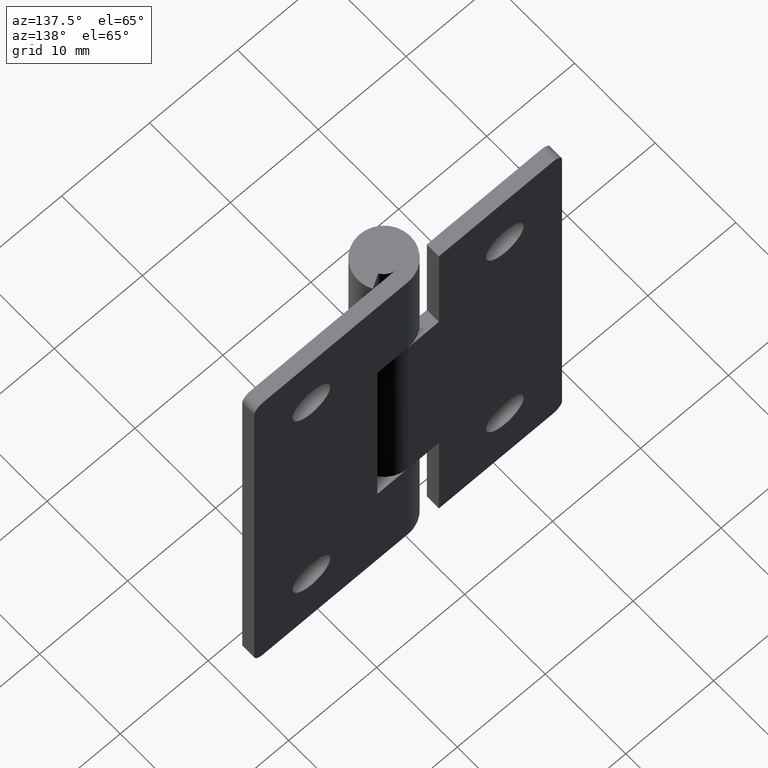
[diagram: clean part render]
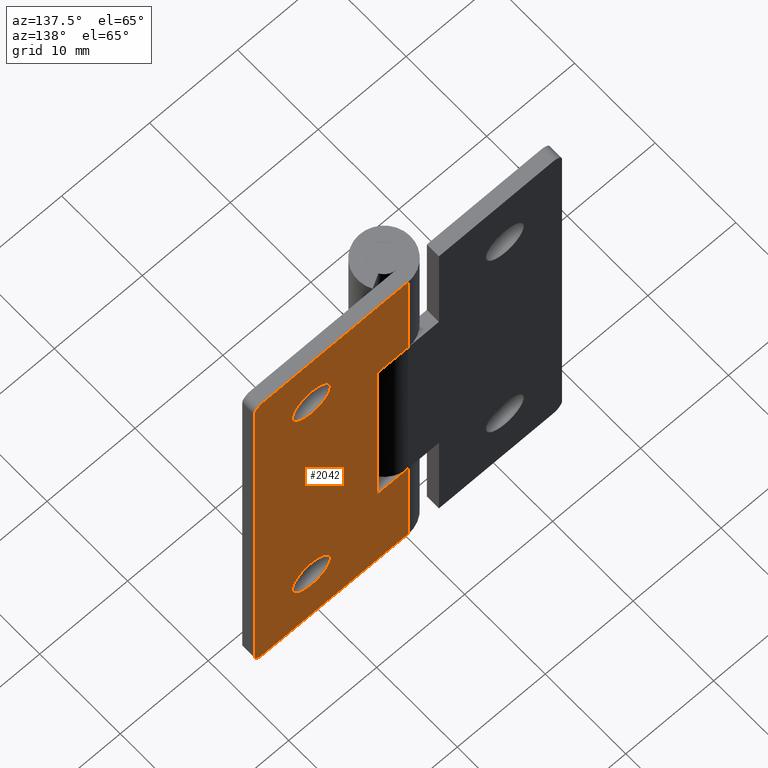
[diagram: same view with one face highlighted and labeled with its STEP entity id]
A machine part, auxiliary view. The second image highlights one B-rep face of the part: STEP entity #2042.
In plain terms, the highlighted face is a freeform B-spline surface patch.
Its self-contained STEP definition (entity closure, byte-faithful):
#1024=CARTESIAN_POINT('',(8.856627732480945,3.0,42.168695055905957));
#1025=VERTEX_POINT('',#1024);
#1031=CARTESIAN_POINT('',(11.0,3.0,44.150008000000000));
#1032=VERTEX_POINT('',#1031);
#1033=CARTESIAN_POINT('',(11.0,3.0,44.150008000000000));
#1034=CARTESIAN_POINT('',(9.012560443104306,3.0,44.150008000000000));
#1035=CARTESIAN_POINT('',(8.856627732480945,3.000000000000000,42.168695055905957));
#1043=(BOUNDED_CURVE()B_SPLINE_CURVE(2,(#1033,#1034,#1035),.UNSPECIFIED.,.F.,.U.)B_SPLINE_CURVE_WITH_KNOTS((3,3),(0.0,0.236331300618196),.UNSPECIFIED.)CURVE()GEOMETRIC_REPRESENTATION_ITEM()RATIONAL_B_SPLINE_CURVE((1.0,0.723120658622267,0.969723356141408))REPRESENTATION_ITEM(''));
#1044=EDGE_CURVE('',#1032,#1025,#1043,.T.);
#1046=CARTESIAN_POINT('',(13.143372267519061,3.0,41.831320944094038));
#1047=VERTEX_POINT('',#1046);
#1048=CARTESIAN_POINT('',(13.143372267519055,3.000000000000000,41.831320944094038));
#1049=CARTESIAN_POINT('',(13.149999999999997,3.000000000000001,41.915534269841991));
#1050=CARTESIAN_POINT('',(13.150000000000000,3.0,42.000008000000001));
#1051=CARTESIAN_POINT('',(13.149999999999999,3.000000000000000,44.150008000000000));
#1052=CARTESIAN_POINT('',(11.0,3.0,44.150008000000000));
#1060=(BOUNDED_CURVE()B_SPLINE_CURVE(2,(#1048,#1049,#1050,#1051,#1052),.UNSPECIFIED.,.F.,.U.)B_SPLINE_CURVE_WITH_KNOTS((3,2,3),(0.736331300618196,0.750000000000000,1.0),.UNSPECIFIED.)CURVE()GEOMETRIC_REPRESENTATION_ITEM()RATIONAL_B_SPLINE_CURVE((0.969723356141407,0.983986122564280,1.0,0.707106781186547,1.0))REPRESENTATION_ITEM(''));
#1061=EDGE_CURVE('',#1047,#1032,#1060,.T.);
#1137=CARTESIAN_POINT('',(11.0,3.0,39.850008000000003));
#1138=VERTEX_POINT('',#1137);
#1139=CARTESIAN_POINT('',(11.0,3.0,39.850008000000003));
#1140=CARTESIAN_POINT('',(12.987439556895684,3.000000000000001,39.850008000000003));
#1141=CARTESIAN_POINT('',(13.143372267519055,3.000000000000000,41.831320944094038));
#1149=(BOUNDED_CURVE()B_SPLINE_CURVE(2,(#1139,#1140,#1141),.UNSPECIFIED.,.F.,.U.)B_SPLINE_CURVE_WITH_KNOTS((3,3),(0.500000000000000,0.736331300618196),.UNSPECIFIED.)CURVE()GEOMETRIC_REPRESENTATION_ITEM()RATIONAL_B_SPLINE_CURVE((1.0,0.723120658622268,0.969723356141406))REPRESENTATION_ITEM(''));
#1150=EDGE_CURVE('',#1138,#1047,#1149,.T.);
#1152=CARTESIAN_POINT('',(8.856627732480945,3.000000000000000,42.168695055905957));
#1153=CARTESIAN_POINT('',(8.850000000000000,3.0,42.084481730158004));
#1154=CARTESIAN_POINT('',(8.850000000000000,3.0,42.000008000000001));
#1155=CARTESIAN_POINT('',(8.850000000000000,3.000000000000000,39.850008000000010));
#1156=CARTESIAN_POINT('',(11.0,3.0,39.850008000000003));
#1164=(BOUNDED_CURVE()B_SPLINE_CURVE(2,(#1152,#1153,#1154,#1155,#1156),.UNSPECIFIED.,.F.,.U.)B_SPLINE_CURVE_WITH_KNOTS((3,2,3),(0.236331300618196,0.250000000000000,0.500000000000000),.UNSPECIFIED.)CURVE()GEOMETRIC_REPRESENTATION_ITEM()RATIONAL_B_SPLINE_CURVE((0.969723356141408,0.983986122564280,1.0,0.707106781186547,1.0))REPRESENTATION_ITEM(''));
#1165=EDGE_CURVE('',#1025,#1138,#1164,.T.);
#1206=CARTESIAN_POINT('',(8.856627732480943,3.0,8.168687055905956));
#1207=VERTEX_POINT('',#1206);
#1213=CARTESIAN_POINT('',(11.0,3.0,10.150000000000000));
#1214=VERTEX_POINT('',#1213);
#1215=CARTESIAN_POINT('',(11.0,3.0,10.150000000000000));
#1216=CARTESIAN_POINT('',(9.012560443104301,3.000000000000000,10.149999999999999));
#1217=CARTESIAN_POINT('',(8.856627732480943,3.000000000000000,8.168687055905956));
#1225=(BOUNDED_CURVE()B_SPLINE_CURVE(2,(#1215,#1216,#1217),.UNSPECIFIED.,.F.,.U.)B_SPLINE_CURVE_WITH_KNOTS((3,3),(0.0,0.236331300618197),.UNSPECIFIED.)CURVE()GEOMETRIC_REPRESENTATION_ITEM()RATIONAL_B_SPLINE_CURVE((1.0,0.723120658622267,0.969723356141408))REPRESENTATION_ITEM(''));
#1226=EDGE_CURVE('',#1214,#1207,#1225,.T.);
#1228=CARTESIAN_POINT('',(13.143372267519061,3.0,7.831312944094043));
#1229=VERTEX_POINT('',#1228);
#1230=CARTESIAN_POINT('',(13.143372267519057,3.000000000000000,7.831312944094043));
#1231=CARTESIAN_POINT('',(13.150000000000000,2.999999999999999,7.915526269841998));
#1232=CARTESIAN_POINT('',(13.150000000000000,3.0,8.0));
#1233=CARTESIAN_POINT('',(13.149999999999999,3.000000000000000,10.149999999999999));
#1234=CARTESIAN_POINT('',(11.0,3.0,10.150000000000000));
#1242=(BOUNDED_CURVE()B_SPLINE_CURVE(2,(#1230,#1231,#1232,#1233,#1234),.UNSPECIFIED.,.F.,.U.)B_SPLINE_CURVE_WITH_KNOTS((3,2,3),(0.736331300618197,0.750000000000000,1.0),.UNSPECIFIED.)CURVE()GEOMETRIC_REPRESENTATION_ITEM()RATIONAL_B_SPLINE_CURVE((0.969723356141408,0.983986122564281,1.0,0.707106781186547,1.0))REPRESENTATION_ITEM(''));
#1243=EDGE_CURVE('',#1229,#1214,#1242,.T.);
#1319=CARTESIAN_POINT('',(11.0,3.0,5.850000000000001));
#1320=VERTEX_POINT('',#1319);
#1321=CARTESIAN_POINT('',(11.0,3.0,5.850000000000001));
#1322=CARTESIAN_POINT('',(12.987439556895684,3.000000000000001,5.850000000000000));
#1323=CARTESIAN_POINT('',(13.143372267519055,3.000000000000000,7.831312944094043));
#1331=(BOUNDED_CURVE()B_SPLINE_CURVE(2,(#1321,#1322,#1323),.UNSPECIFIED.,.F.,.U.)B_SPLINE_CURVE_WITH_KNOTS((3,3),(0.500000000000000,0.736331300618196),.UNSPECIFIED.)CURVE()GEOMETRIC_REPRESENTATION_ITEM()RATIONAL_B_SPLINE_CURVE((1.0,0.723120658622268,0.969723356141406))REPRESENTATION_ITEM(''));
#1332=EDGE_CURVE('',#1320,#1229,#1331,.T.);
#1334=CARTESIAN_POINT('',(8.856627732480943,3.000000000000000,8.168687055905956));
#1335=CARTESIAN_POINT('',(8.849999999999998,2.999999999999999,8.084473730158001));
#1336=CARTESIAN_POINT('',(8.850000000000000,3.0,8.0));
#1337=CARTESIAN_POINT('',(8.850000000000000,3.000000000000000,5.850000000000001));
#1338=CARTESIAN_POINT('',(11.0,3.0,5.850000000000001));
#1346=(BOUNDED_CURVE()B_SPLINE_CURVE(2,(#1334,#1335,#1336,#1337,#1338),.UNSPECIFIED.,.F.,.U.)B_SPLINE_CURVE_WITH_KNOTS((3,2,3),(0.236331300618196,0.250000000000000,0.500000000000000),.UNSPECIFIED.)CURVE()GEOMETRIC_REPRESENTATION_ITEM()RATIONAL_B_SPLINE_CURVE((0.969723356141408,0.983986122564281,1.0,0.707106781186547,1.0))REPRESENTATION_ITEM(''));
#1347=EDGE_CURVE('',#1207,#1320,#1346,.T.);
#1367=CARTESIAN_POINT('',(16.500000000000000,3.0,50.000008000000001));
#1368=VERTEX_POINT('',#1367);
#1369=CARTESIAN_POINT('',(17.500000000000000,3.0,49.000008000000001));
#1370=VERTEX_POINT('',#1369);
#1371=CARTESIAN_POINT('',(16.500000000000000,3.0,50.000008000000001));
#1372=CARTESIAN_POINT('',(17.499999999999996,3.0,50.000008000000001));
#1373=CARTESIAN_POINT('',(17.500000000000000,3.0,49.000008000000001));
#1381=(BOUNDED_CURVE()B_SPLINE_CURVE(2,(#1371,#1372,#1373),.UNSPECIFIED.,.F.,.U.)CURVE()GEOMETRIC_REPRESENTATION_ITEM()QUASI_UNIFORM_CURVE()RATIONAL_B_SPLINE_CURVE((1.0,0.707106781186548,1.0))REPRESENTATION_ITEM(''));
#1382=EDGE_CURVE('',#1368,#1370,#1381,.T.);
#1428=CARTESIAN_POINT('',(17.500000000000000,3.0,1.0));
#1429=VERTEX_POINT('',#1428);
#1430=CARTESIAN_POINT('',(16.500000000000000,3.0,0.0));
#1431=VERTEX_POINT('',#1430);
#1432=CARTESIAN_POINT('',(17.500000000000000,3.0,1.0));
#1433=CARTESIAN_POINT('',(17.499999999999996,3.0,0.0));
#1434=CARTESIAN_POINT('',(16.500000000000000,3.0,0.0));
#1442=(BOUNDED_CURVE()B_SPLINE_CURVE(2,(#1432,#1433,#1434),.UNSPECIFIED.,.F.,.U.)CURVE()GEOMETRIC_REPRESENTATION_ITEM()QUASI_UNIFORM_CURVE()RATIONAL_B_SPLINE_CURVE((1.0,0.707106781186548,1.0))REPRESENTATION_ITEM(''));
#1443=EDGE_CURVE('',#1429,#1431,#1442,.T.);
#1482=CARTESIAN_POINT('',(3.500000000000000,3.0,13.0));
#1483=VERTEX_POINT('',#1482);
#1489=CARTESIAN_POINT('',(0.0,3.0,13.0));
#1490=VERTEX_POINT('',#1489);
#1491=CARTESIAN_POINT('',(0.0,3.0,13.0));
#1492=CARTESIAN_POINT('',(3.500000000000000,3.0,13.0));
#1493=QUASI_UNIFORM_CURVE('',1,(#1491,#1492),.UNSPECIFIED.,.F.,.U.);
#1494=EDGE_CURVE('',#1490,#1483,#1493,.T.);
#1588=CARTESIAN_POINT('',(0.0,3.0,37.000008000000001));
#1589=VERTEX_POINT('',#1588);
#1609=CARTESIAN_POINT('',(3.500000000000000,3.0,37.000008000000001));
#1610=VERTEX_POINT('',#1609);
#1611=CARTESIAN_POINT('',(3.500000000000000,3.0,37.000008000000001));
#1612=CARTESIAN_POINT('',(0.0,3.0,37.000008000000001));
#1613=QUASI_UNIFORM_CURVE('',1,(#1611,#1612),.UNSPECIFIED.,.F.,.U.);
#1614=EDGE_CURVE('',#1610,#1589,#1613,.T.);
#1637=CARTESIAN_POINT('',(3.500000000000000,3.0,13.0));
#1638=CARTESIAN_POINT('',(3.500000000000000,3.0,37.000008000000001));
#1639=QUASI_UNIFORM_CURVE('',1,(#1637,#1638),.UNSPECIFIED.,.F.,.U.);
#1640=EDGE_CURVE('',#1483,#1610,#1639,.T.);
#1656=CARTESIAN_POINT('',(-5.510729E-016,3.0,0.0));
#1657=VERTEX_POINT('',#1656);
#1658=CARTESIAN_POINT('',(-5.510729E-016,3.0,0.0));
#1659=CARTESIAN_POINT('',(16.500000000000000,3.0,0.0));
#1660=QUASI_UNIFORM_CURVE('',1,(#1658,#1659),.UNSPECIFIED.,.F.,.U.);
#1661=EDGE_CURVE('',#1657,#1431,#1660,.T.);
#1734=CARTESIAN_POINT('',(-5.510729E-016,3.0,50.000008000000001));
#1735=VERTEX_POINT('',#1734);
#1736=CARTESIAN_POINT('',(-5.510729E-016,3.0,50.000008000000001));
#1737=CARTESIAN_POINT('',(16.500000000000000,3.0,50.000008000000001));
#1738=QUASI_UNIFORM_CURVE('',1,(#1736,#1737),.UNSPECIFIED.,.F.,.U.);
#1739=EDGE_CURVE('',#1735,#1368,#1738,.T.);
#1802=CARTESIAN_POINT('',(17.500000000000000,3.0,49.000008000000001));
#1803=CARTESIAN_POINT('',(17.500000000000000,3.0,1.0));
#1804=QUASI_UNIFORM_CURVE('',1,(#1802,#1803),.UNSPECIFIED.,.F.,.U.);
#1805=EDGE_CURVE('',#1370,#1429,#1804,.T.);
#1834=CARTESIAN_POINT('',(0.0,3.0,13.0));
#1835=CARTESIAN_POINT('',(-5.510729E-016,3.0,0.0));
#1836=QUASI_UNIFORM_CURVE('',1,(#1834,#1835),.UNSPECIFIED.,.F.,.U.);
#1837=EDGE_CURVE('',#1490,#1657,#1836,.T.);
#1877=CARTESIAN_POINT('',(-5.510729E-016,3.0,50.000008000000001));
#1878=CARTESIAN_POINT('',(0.0,3.0,37.000008000000001));
#1879=QUASI_UNIFORM_CURVE('',1,(#1877,#1878),.UNSPECIFIED.,.F.,.U.);
#1880=EDGE_CURVE('',#1735,#1589,#1879,.T.);
#2013=CARTESIAN_POINT('',(-0.874124966081605,3.0,-2.497500302690281));
#2014=CARTESIAN_POINT('',(-0.874124966081605,3.0,52.497509643795013));
#2015=CARTESIAN_POINT('',(18.374125435468180,3.0,-2.497500302690281));
#2016=CARTESIAN_POINT('',(18.374125435468180,3.0,52.497509643795013));
#2017=B_SPLINE_SURFACE_WITH_KNOTS('',1,1,((#2013,#2015),(#2014,#2016)),.UNSPECIFIED.,.F.,.F.,.U.,(2,2),(2,2),(0.0,54.995009946485297),(0.0,19.248250401549790),.UNSPECIFIED.);
#2018=ORIENTED_EDGE('',*,*,#1805,.T.);
#2019=ORIENTED_EDGE('',*,*,#1443,.T.);
#2020=ORIENTED_EDGE('',*,*,#1661,.F.);
#2021=ORIENTED_EDGE('',*,*,#1837,.F.);
#2022=ORIENTED_EDGE('',*,*,#1494,.T.);
#2023=ORIENTED_EDGE('',*,*,#1640,.T.);
#2024=ORIENTED_EDGE('',*,*,#1614,.T.);
#2025=ORIENTED_EDGE('',*,*,#1880,.F.);
#2026=ORIENTED_EDGE('',*,*,#1739,.T.);
#2027=ORIENTED_EDGE('',*,*,#1382,.T.);
#2028=EDGE_LOOP('',(#2018,#2019,#2020,#2021,#2022,#2023,#2024,#2025,#2026,#2027));
#2029=FACE_OUTER_BOUND('',#2028,.T.);
#2030=ORIENTED_EDGE('',*,*,#1332,.T.);
#2031=ORIENTED_EDGE('',*,*,#1243,.T.);
#2032=ORIENTED_EDGE('',*,*,#1226,.T.);
#2033=ORIENTED_EDGE('',*,*,#1347,.T.);
#2034=EDGE_LOOP('',(#2030,#2031,#2032,#2033));
#2035=FACE_BOUND('',#2034,.T.);
#2036=ORIENTED_EDGE('',*,*,#1150,.T.);
#2037=ORIENTED_EDGE('',*,*,#1061,.T.);
#2038=ORIENTED_EDGE('',*,*,#1044,.T.);
#2039=ORIENTED_EDGE('',*,*,#1165,.T.);
#2040=EDGE_LOOP('',(#2036,#2037,#2038,#2039));
#2041=FACE_BOUND('',#2040,.T.);
#2042=ADVANCED_FACE('',(#2029,#2035,#2041),#2017,.T.);